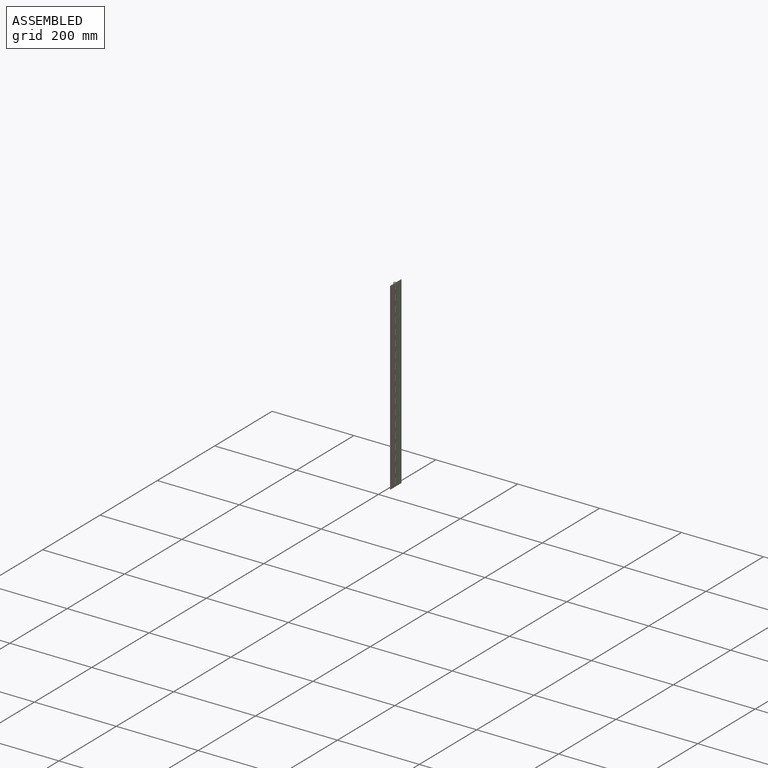
[diagram: assembled view]
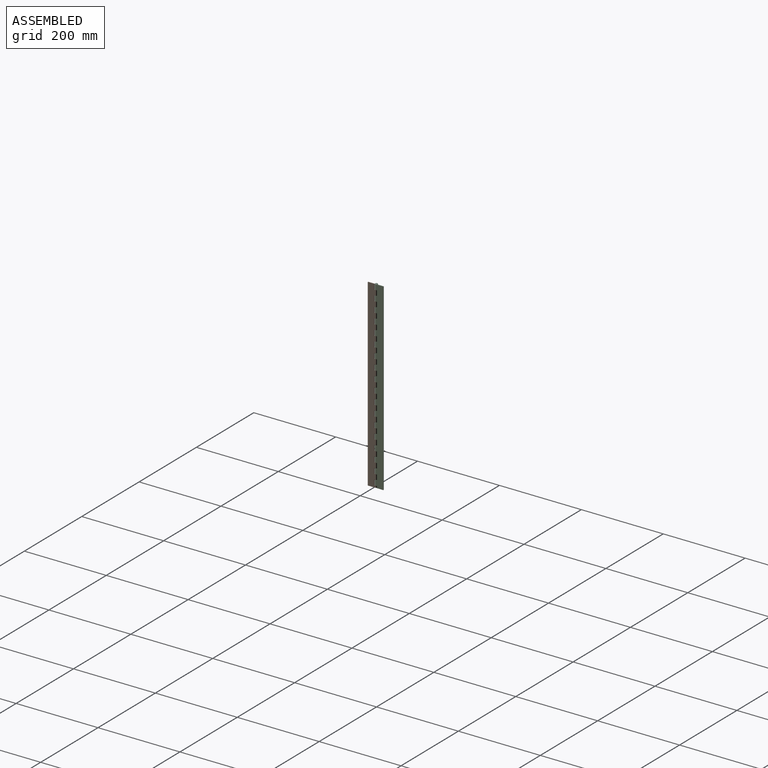
[diagram: assembled view, second angle]
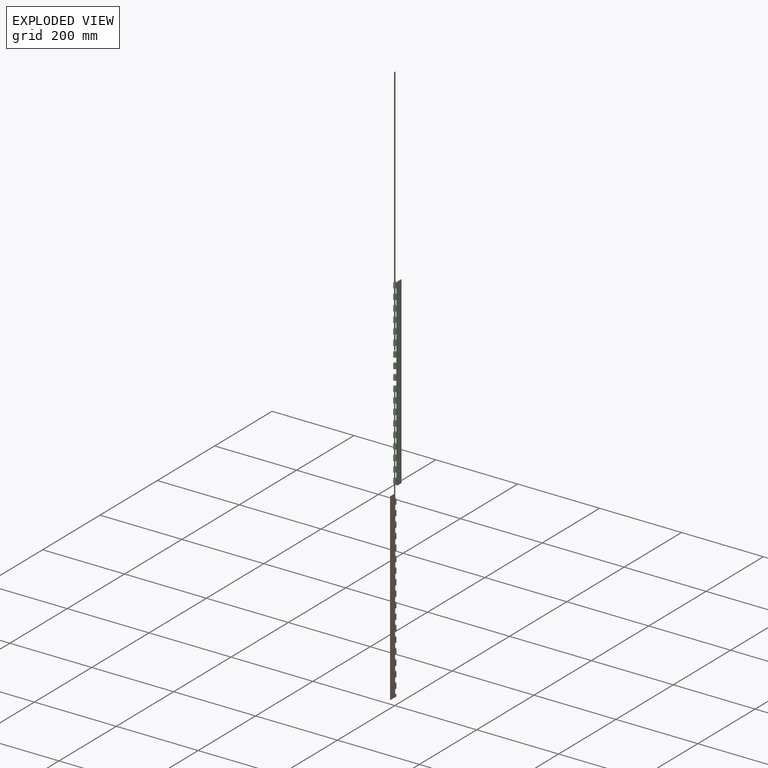
[diagram: exploded view]
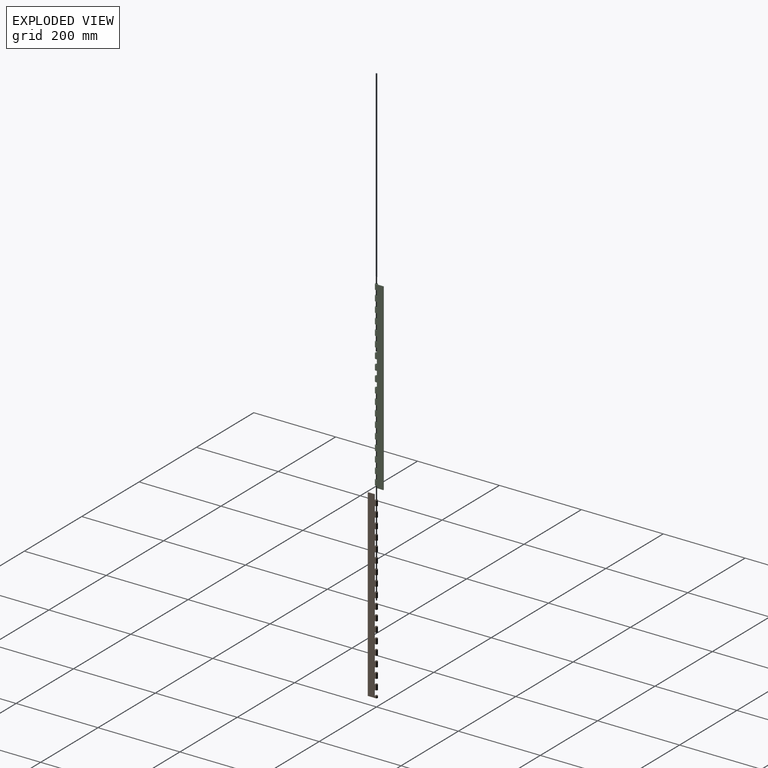
[diagram: exploded view, second angle]
ASSEMBLY  parts=3 mates=2
PART A: 4 faces, bbox 3.2x3.2x449.3 mm
  f0: cylinder r=1.59mm len=448.95mm, axis (0,0,-1), area 4478mm2, adj f2,f3
  f1: plane 2.54x2.54mm, normal (0,0,1), area 5.1mm2, adj f2
  f2: cone r=1.27mm half-angle=45deg, axis (0,0,-1), area 4mm2, adj f0,f1
  f3: plane 3.18x3.18mm, normal (0,0,-1), area 7.9mm2, adj f0
PART B: 112 faces, bbox 22.2x6.2x449.3 mm
  f0: plane 449.26x1.52mm, normal (-1,0,0), area 684.7mm2, adj f1,f2,f24,f111
  f1: plane 449.26x19.05mm, normal (0,-1,0), area 7841.4mm2, adj f0,f3,f6,f7,f8,f9,f10,f11
  f2: plane 449.26x19.05mm, normal (0,1,0), area 7841.4mm2, adj f0,f5,f6,f7,f8,f9,f10,f11
  f3: cylinder r=3.11mm len=6.22mm, axis (0,0,-1), area 76.3mm2, adj f1,f4,f25,f111
  f4: plane 4.76x1.38mm, normal (0.42,-0.91,0), area 7.3mm2, adj f3,f5,f25,f111
  f5: cylinder r=1.59mm len=4.76mm, axis (0,0,-1), area 38.9mm2, adj f2,f4,f25,f111
  f6: plane 12.7x1.52mm, normal (1,0,0), area 19.4mm2, adj f1,f2,f24,f109
  f7: plane 12.7x1.52mm, normal (1,0,0), area 19.4mm2, adj f1,f2,f104,f110
  f8: plane 12.7x1.52mm, normal (1,0,0), area 19.4mm2, adj f1,f2,f99,f105
  f9: plane 12.7x1.52mm, normal (1,0,0), area 19.4mm2, adj f1,f2,f94,f100
  f10: plane 12.7x1.52mm, normal (1,0,0), area 19.4mm2, adj f1,f2,f89,f95
  f11: plane 12.7x1.52mm, normal (1,0,0), area 19.4mm2, adj f1,f2,f84,f90
  f12: plane 12.7x1.52mm, normal (1,0,0), area 19.4mm2, adj f1,f2,f79,f85
  f13: plane 12.7x1.52mm, normal (1,0,0), area 19.4mm2, adj f1,f2,f74,f80
  f14: plane 12.7x1.52mm, normal (1,0,0), area 19.4mm2, adj f1,f2,f69,f75
  f15: plane 12.7x1.52mm, normal (1,0,0), area 19.4mm2, adj f1,f2,f64,f70
  f16: plane 12.7x1.52mm, normal (1,0,0), area 19.4mm2, adj f1,f2,f59,f65
  f17: plane 12.7x1.52mm, normal (1,0,0), area 19.4mm2, adj f1,f2,f54,f60
  f18: plane 12.7x1.52mm, normal (1,0,0), area 19.4mm2, adj f1,f2,f49,f55
  f19: plane 12.7x1.52mm, normal (1,0,0), area 19.4mm2, adj f1,f2,f44,f50
  f20: plane 12.7x1.52mm, normal (1,0,0), area 19.4mm2, adj f1,f2,f39,f45
  f21: plane 12.7x1.52mm, normal (1,0,0), area 19.4mm2, adj f1,f2,f34,f40
  f22: plane 12.7x1.52mm, normal (1,0,0), area 19.4mm2, adj f1,f2,f29,f35
  f23: plane 12.7x1.52mm, normal (1,0,0), area 19.4mm2, adj f1,f2,f25,f30
  f24: plane 15.91x1.52mm, normal (0,0,1), area 24.3mm2, adj f0,f1,f2,f6
  f25: plane 6.25x6.22mm, normal (0,0,1), area 23.2mm2, adj f1,f2,f3,f4,f5,f23
  f26: cylinder r=3.11mm len=12.7mm, axis (0,0,-1), area 203.5mm2, adj f1,f27,f29,f30
  f27: plane 12.7x1.38mm, normal (0.42,-0.91,0), area 19.4mm2, adj f26,f28,f29,f30
  f28: cylinder r=1.59mm len=12.7mm, axis (0,0,-1), area 103.8mm2, adj f2,f27,f29,f30
  f29: plane 6.25x6.22mm, normal (0,0,1), area 23.2mm2, adj f1,f2,f22,f26,f27,f28
  f30: plane 6.25x6.22mm, normal (0,0,-1), area 23.2mm2, adj f1,f2,f23,f26,f27,f28
  f31: cylinder r=3.11mm len=12.7mm, axis (0,0,-1), area 203.5mm2, adj f1,f32,f34,f35
  f32: plane 12.7x1.38mm, normal (0.42,-0.91,0), area 19.4mm2, adj f31,f33,f34,f35
  f33: cylinder r=1.59mm len=12.7mm, axis (0,0,-1), area 103.8mm2, adj f2,f32,f34,f35
  f34: plane 6.25x6.22mm, normal (0,0,1), area 23.2mm2, adj f1,f2,f21,f31,f32,f33
  f35: plane 6.25x6.22mm, normal (0,0,-1), area 23.2mm2, adj f1,f2,f22,f31,f32,f33
  f36: cylinder r=3.11mm len=12.7mm, axis (0,0,-1), area 203.5mm2, adj f1,f37,f39,f40
  f37: plane 12.7x1.38mm, normal (0.42,-0.91,0), area 19.4mm2, adj f36,f38,f39,f40
  f38: cylinder r=1.59mm len=12.7mm, axis (0,0,-1), area 103.8mm2, adj f2,f37,f39,f40
  f39: plane 6.25x6.22mm, normal (0,0,1), area 23.2mm2, adj f1,f2,f20,f36,f37,f38
  f40: plane 6.25x6.22mm, normal (0,0,-1), area 23.2mm2, adj f1,f2,f21,f36,f37,f38
  f41: cylinder r=3.11mm len=12.7mm, axis (0,0,-1), area 203.5mm2, adj f1,f42,f44,f45
  f42: plane 12.7x1.38mm, normal (0.42,-0.91,0), area 19.4mm2, adj f41,f43,f44,f45
  f43: cylinder r=1.59mm len=12.7mm, axis (0,0,-1), area 103.8mm2, adj f2,f42,f44,f45
  f44: plane 6.25x6.22mm, normal (0,0,1), area 23.2mm2, adj f1,f2,f19,f41,f42,f43
  f45: plane 6.25x6.22mm, normal (0,0,-1), area 23.2mm2, adj f1,f2,f20,f41,f42,f43
  f46: cylinder r=3.11mm len=12.7mm, axis (0,0,-1), area 203.5mm2, adj f1,f47,f49,f50
  f47: plane 12.7x1.38mm, normal (0.42,-0.91,0), area 19.4mm2, adj f46,f48,f49,f50
  f48: cylinder r=1.59mm len=12.7mm, axis (0,0,-1), area 103.8mm2, adj f2,f47,f49,f50
  f49: plane 6.25x6.22mm, normal (0,0,1), area 23.2mm2, adj f1,f2,f18,f46,f47,f48
  f50: plane 6.25x6.22mm, normal (0,0,-1), area 23.2mm2, adj f1,f2,f19,f46,f47,f48
  f51: cylinder r=3.11mm len=12.7mm, axis (0,0,-1), area 203.5mm2, adj f1,f52,f54,f55
  f52: plane 12.7x1.38mm, normal (0.42,-0.91,0), area 19.4mm2, adj f51,f53,f54,f55
  f53: cylinder r=1.59mm len=12.7mm, axis (0,0,-1), area 103.8mm2, adj f2,f52,f54,f55
  f54: plane 6.25x6.22mm, normal (0,0,1), area 23.2mm2, adj f1,f2,f17,f51,f52,f53
  f55: plane 6.25x6.22mm, normal (0,0,-1), area 23.2mm2, adj f1,f2,f18,f51,f52,f53
  f56: cylinder r=3.11mm len=12.7mm, axis (0,0,-1), area 203.5mm2, adj f1,f57,f59,f60
  f57: plane 12.7x1.38mm, normal (0.42,-0.91,0), area 19.4mm2, adj f56,f58,f59,f60
  f58: cylinder r=1.59mm len=12.7mm, axis (0,0,-1), area 103.8mm2, adj f2,f57,f59,f60
  f59: plane 6.25x6.22mm, normal (0,0,1), area 23.2mm2, adj f1,f2,f16,f56,f57,f58
  f60: plane 6.25x6.22mm, normal (0,0,-1), area 23.2mm2, adj f1,f2,f17,f56,f57,f58
  f61: cylinder r=3.11mm len=12.7mm, axis (0,0,-1), area 203.5mm2, adj f1,f62,f64,f65
  f62: plane 12.7x1.38mm, normal (0.42,-0.91,0), area 19.4mm2, adj f61,f63,f64,f65
  f63: cylinder r=1.59mm len=12.7mm, axis (0,0,-1), area 103.8mm2, adj f2,f62,f64,f65
  f64: plane 6.25x6.22mm, normal (0,0,1), area 23.2mm2, adj f1,f2,f15,f61,f62,f63
  f65: plane 6.25x6.22mm, normal (0,0,-1), area 23.2mm2, adj f1,f2,f16,f61,f62,f63
  f66: cylinder r=3.11mm len=12.7mm, axis (0,0,-1), area 203.5mm2, adj f1,f67,f69,f70
  f67: plane 12.7x1.38mm, normal (0.42,-0.91,0), area 19.4mm2, adj f66,f68,f69,f70
  f68: cylinder r=1.59mm len=12.7mm, axis (0,0,-1), area 103.8mm2, adj f2,f67,f69,f70
  f69: plane 6.25x6.22mm, normal (0,0,1), area 23.2mm2, adj f1,f2,f14,f66,f67,f68
  f70: plane 6.25x6.22mm, normal (0,0,-1), area 23.2mm2, adj f1,f2,f15,f66,f67,f68
  f71: cylinder r=3.11mm len=12.7mm, axis (0,0,-1), area 203.5mm2, adj f1,f72,f74,f75
  f72: plane 12.7x1.38mm, normal (0.42,-0.91,0), area 19.4mm2, adj f71,f73,f74,f75
  f73: cylinder r=1.59mm len=12.7mm, axis (0,0,-1), area 103.8mm2, adj f2,f72,f74,f75
  f74: plane 6.25x6.22mm, normal (0,0,1), area 23.2mm2, adj f1,f2,f13,f71,f72,f73
  f75: plane 6.25x6.22mm, normal (0,0,-1), area 23.2mm2, adj f1,f2,f14,f71,f72,f73
  f76: cylinder r=3.11mm len=12.7mm, axis (0,0,-1), area 203.5mm2, adj f1,f77,f79,f80
  f77: plane 12.7x1.38mm, normal (0.42,-0.91,0), area 19.4mm2, adj f76,f78,f79,f80
  f78: cylinder r=1.59mm len=12.7mm, axis (0,0,-1), area 103.8mm2, adj f2,f77,f79,f80
  f79: plane 6.25x6.22mm, normal (0,0,1), area 23.2mm2, adj f1,f2,f12,f76,f77,f78
  f80: plane 6.25x6.22mm, normal (0,0,-1), area 23.2mm2, adj f1,f2,f13,f76,f77,f78
  f81: cylinder r=3.11mm len=12.7mm, axis (0,0,-1), area 203.5mm2, adj f1,f82,f84,f85
  f82: plane 12.7x1.38mm, normal (0.42,-0.91,0), area 19.4mm2, adj f81,f83,f84,f85
  f83: cylinder r=1.59mm len=12.7mm, axis (0,0,-1), area 103.8mm2, adj f2,f82,f84,f85
  f84: plane 6.25x6.22mm, normal (0,0,1), area 23.2mm2, adj f1,f2,f11,f81,f82,f83
  f85: plane 6.25x6.22mm, normal (0,0,-1), area 23.2mm2, adj f1,f2,f12,f81,f82,f83
  f86: cylinder r=3.11mm len=12.7mm, axis (0,0,-1), area 203.5mm2, adj f1,f87,f89,f90
  f87: plane 12.7x1.38mm, normal (0.42,-0.91,0), area 19.4mm2, adj f86,f88,f89,f90
  f88: cylinder r=1.59mm len=12.7mm, axis (0,0,-1), area 103.8mm2, adj f2,f87,f89,f90
  f89: plane 6.25x6.22mm, normal (0,0,1), area 23.2mm2, adj f1,f2,f10,f86,f87,f88
  f90: plane 6.25x6.22mm, normal (0,0,-1), area 23.2mm2, adj f1,f2,f11,f86,f87,f88
  f91: cylinder r=3.11mm len=12.7mm, axis (0,0,-1), area 203.5mm2, adj f1,f92,f94,f95
  f92: plane 12.7x1.38mm, normal (0.42,-0.91,0), area 19.4mm2, adj f91,f93,f94,f95
  f93: cylinder r=1.59mm len=12.7mm, axis (0,0,-1), area 103.8mm2, adj f2,f92,f94,f95
  f94: plane 6.25x6.22mm, normal (0,0,1), area 23.2mm2, adj f1,f2,f9,f91,f92,f93
  f95: plane 6.25x6.22mm, normal (0,0,-1), area 23.2mm2, adj f1,f2,f10,f91,f92,f93
  f96: cylinder r=3.11mm len=12.7mm, axis (0,0,-1), area 203.5mm2, adj f1,f97,f99,f100
  f97: plane 12.7x1.38mm, normal (0.42,-0.91,0), area 19.4mm2, adj f96,f98,f99,f100
  f98: cylinder r=1.59mm len=12.7mm, axis (0,0,-1), area 103.8mm2, adj f2,f97,f99,f100
  f99: plane 6.25x6.22mm, normal (0,0,1), area 23.2mm2, adj f1,f2,f8,f96,f97,f98
  f100: plane 6.25x6.22mm, normal (0,0,-1), area 23.2mm2, adj f1,f2,f9,f96,f97,f98
  f101: cylinder r=3.11mm len=12.7mm, axis (0,0,-1), area 203.5mm2, adj f1,f102,f104,f105
  f102: plane 12.7x1.38mm, normal (0.42,-0.91,0), area 19.4mm2, adj f101,f103,f104,f105
  f103: cylinder r=1.59mm len=12.7mm, axis (0,0,-1), area 103.8mm2, adj f2,f102,f104,f105
  f104: plane 6.25x6.22mm, normal (0,0,1), area 23.2mm2, adj f1,f2,f7,f101,f102,f103
  f105: plane 6.25x6.22mm, normal (0,0,-1), area 23.2mm2, adj f1,f2,f8,f101,f102,f103
  f106: cylinder r=3.11mm len=12.7mm, axis (0,0,-1), area 203.5mm2, adj f1,f107,f109,f110
  f107: plane 12.7x1.38mm, normal (0.42,-0.91,0), area 19.4mm2, adj f106,f108,f109,f110
  f108: cylinder r=1.59mm len=12.7mm, axis (0,0,-1), area 103.8mm2, adj f2,f107,f109,f110
  f109: plane 6.25x6.22mm, normal (0,0,1), area 23.2mm2, adj f1,f2,f6,f106,f107,f108
  f110: plane 6.25x6.22mm, normal (0,0,-1), area 23.2mm2, adj f1,f2,f7,f106,f107,f108
  f111: plane 22.16x6.22mm, normal (0,0,-1), area 47.5mm2, adj f0,f1,f2,f3,f4,f5
PART C: 112 faces, bbox 22.2x6.2x449.3 mm
  f0: plane 449.26x1.52mm, normal (1,0,0), area 684.7mm2, adj f1,f2,f58,f111
  f1: plane 449.26x19.05mm, normal (0,1,0), area 7871.9mm2, adj f0,f3,f5,f8,f11,f14,f17,f20
  f2: plane 449.26x19.05mm, normal (0,-1,0), area 7871.9mm2, adj f0,f3,f4,f7,f10,f13,f16,f19
  f3: plane 4.76x1.52mm, normal (-1,0,0), area 7.3mm2, adj f1,f2,f59,f111
  f4: cylinder r=3.11mm len=12.7mm, axis (0,0,-1), area 203.5mm2, adj f2,f57,f58,f110
  f5: cylinder r=1.59mm len=12.7mm, axis (0,0,-1), area 103.8mm2, adj f1,f6,f107,f108
  f6: plane 12.7x1.38mm, normal (-0.42,-0.91,0), area 19.4mm2, adj f5,f7,f107,f108
  f7: cylinder r=3.11mm len=12.7mm, axis (0,0,-1), area 203.5mm2, adj f2,f6,f107,f108
  f8: cylinder r=1.59mm len=12.7mm, axis (0,0,-1), area 103.8mm2, adj f1,f9,f104,f105
  f9: plane 12.7x1.38mm, normal (-0.42,-0.91,0), area 19.4mm2, adj f8,f10,f104,f105
  f10: cylinder r=3.11mm len=12.7mm, axis (0,0,-1), area 203.5mm2, adj f2,f9,f104,f105
  f11: cylinder r=1.59mm len=12.7mm, axis (0,0,-1), area 103.8mm2, adj f1,f12,f101,f102
  f12: plane 12.7x1.38mm, normal (-0.42,-0.91,0), area 19.4mm2, adj f11,f13,f101,f102
  f13: cylinder r=3.11mm len=12.7mm, axis (0,0,-1), area 203.5mm2, adj f2,f12,f101,f102
  f14: cylinder r=1.59mm len=12.7mm, axis (0,0,-1), area 103.8mm2, adj f1,f15,f98,f99
  f15: plane 12.7x1.38mm, normal (-0.42,-0.91,0), area 19.4mm2, adj f14,f16,f98,f99
  f16: cylinder r=3.11mm len=12.7mm, axis (0,0,-1), area 203.5mm2, adj f2,f15,f98,f99
  f17: cylinder r=1.59mm len=12.7mm, axis (0,0,-1), area 103.8mm2, adj f1,f18,f95,f96
  f18: plane 12.7x1.38mm, normal (-0.42,-0.91,0), area 19.4mm2, adj f17,f19,f95,f96
  f19: cylinder r=3.11mm len=12.7mm, axis (0,0,-1), area 203.5mm2, adj f2,f18,f95,f96
  f20: cylinder r=1.59mm len=12.7mm, axis (0,0,-1), area 103.8mm2, adj f1,f21,f92,f93
  f21: plane 12.7x1.38mm, normal (-0.42,-0.91,0), area 19.4mm2, adj f20,f22,f92,f93
  f22: cylinder r=3.11mm len=12.7mm, axis (0,0,-1), area 203.5mm2, adj f2,f21,f92,f93
  f23: cylinder r=1.59mm len=12.7mm, axis (0,0,-1), area 103.8mm2, adj f1,f24,f89,f90
  f24: plane 12.7x1.38mm, normal (-0.42,-0.91,0), area 19.4mm2, adj f23,f25,f89,f90
  f25: cylinder r=3.11mm len=12.7mm, axis (0,0,-1), area 203.5mm2, adj f2,f24,f89,f90
  f26: cylinder r=1.59mm len=12.7mm, axis (0,0,-1), area 103.8mm2, adj f1,f27,f86,f87
  f27: plane 12.7x1.38mm, normal (-0.42,-0.91,0), area 19.4mm2, adj f26,f28,f86,f87
  f28: cylinder r=3.11mm len=12.7mm, axis (0,0,-1), area 203.5mm2, adj f2,f27,f86,f87
  f29: cylinder r=1.59mm len=12.7mm, axis (0,0,-1), area 103.8mm2, adj f1,f30,f83,f84
  f30: plane 12.7x1.38mm, normal (-0.42,-0.91,0), area 19.4mm2, adj f29,f31,f83,f84
  f31: cylinder r=3.11mm len=12.7mm, axis (0,0,-1), area 203.5mm2, adj f2,f30,f83,f84
  f32: cylinder r=1.59mm len=12.7mm, axis (0,0,-1), area 103.8mm2, adj f1,f33,f80,f81
  f33: plane 12.7x1.38mm, normal (-0.42,-0.91,0), area 19.4mm2, adj f32,f34,f80,f81
  f34: cylinder r=3.11mm len=12.7mm, axis (0,0,-1), area 203.5mm2, adj f2,f33,f80,f81
  f35: cylinder r=1.59mm len=12.7mm, axis (0,0,-1), area 103.8mm2, adj f1,f36,f77,f78
  f36: plane 12.7x1.38mm, normal (-0.42,-0.91,0), area 19.4mm2, adj f35,f37,f77,f78
  f37: cylinder r=3.11mm len=12.7mm, axis (0,0,-1), area 203.5mm2, adj f2,f36,f77,f78
  f38: cylinder r=1.59mm len=12.7mm, axis (0,0,-1), area 103.8mm2, adj f1,f39,f74,f75
  f39: plane 12.7x1.38mm, normal (-0.42,-0.91,0), area 19.4mm2, adj f38,f40,f74,f75
  f40: cylinder r=3.11mm len=12.7mm, axis (0,0,-1), area 203.5mm2, adj f2,f39,f74,f75
  f41: cylinder r=1.59mm len=12.7mm, axis (0,0,-1), area 103.8mm2, adj f1,f42,f71,f72
  f42: plane 12.7x1.38mm, normal (-0.42,-0.91,0), area 19.4mm2, adj f41,f43,f71,f72
  f43: cylinder r=3.11mm len=12.7mm, axis (0,0,-1), area 203.5mm2, adj f2,f42,f71,f72
  f44: cylinder r=1.59mm len=12.7mm, axis (0,0,-1), area 103.8mm2, adj f1,f45,f68,f69
  f45: plane 12.7x1.38mm, normal (-0.42,-0.91,0), area 19.4mm2, adj f44,f46,f68,f69
  f46: cylinder r=3.11mm len=12.7mm, axis (0,0,-1), area 203.5mm2, adj f2,f45,f68,f69
  f47: cylinder r=1.59mm len=12.7mm, axis (0,0,-1), area 103.8mm2, adj f1,f48,f65,f66
  f48: plane 12.7x1.38mm, normal (-0.42,-0.91,0), area 19.4mm2, adj f47,f49,f65,f66
  f49: cylinder r=3.11mm len=12.7mm, axis (0,0,-1), area 203.5mm2, adj f2,f48,f65,f66
  f50: cylinder r=1.59mm len=12.7mm, axis (0,0,-1), area 103.8mm2, adj f1,f51,f62,f63
  f51: plane 12.7x1.38mm, normal (-0.42,-0.91,0), area 19.4mm2, adj f50,f52,f62,f63
  f52: cylinder r=3.11mm len=12.7mm, axis (0,0,-1), area 203.5mm2, adj f2,f51,f62,f63
  f53: cylinder r=1.59mm len=12.7mm, axis (0,0,-1), area 103.8mm2, adj f1,f54,f59,f60
  f54: plane 12.7x1.38mm, normal (-0.42,-0.91,0), area 19.4mm2, adj f53,f55,f59,f60
  f55: cylinder r=3.11mm len=12.7mm, axis (0,0,-1), area 203.5mm2, adj f2,f54,f59,f60
  f56: cylinder r=1.59mm len=12.7mm, axis (0,0,-1), area 103.8mm2, adj f1,f57,f58,f110
  f57: plane 12.7x1.38mm, normal (-0.42,-0.91,0), area 19.4mm2, adj f4,f56,f58,f110
  f58: plane 22.16x6.22mm, normal (0,0,1), area 47.5mm2, adj f0,f1,f2,f4,f56,f57
  f59: plane 6.22x6.22mm, normal (0,0,-1), area 23.2mm2, adj f1,f2,f3,f53,f54,f55
  f60: plane 6.22x6.22mm, normal (0,0,1), area 23.2mm2, adj f1,f2,f53,f54,f55,f61
  f61: plane 12.7x1.52mm, normal (-1,0,0), area 19.4mm2, adj f1,f2,f60,f62
  f62: plane 6.22x6.22mm, normal (0,0,-1), area 23.2mm2, adj f1,f2,f50,f51,f52,f61
  f63: plane 6.22x6.22mm, normal (0,0,1), area 23.2mm2, adj f1,f2,f50,f51,f52,f64
  f64: plane 12.7x1.52mm, normal (-1,0,0), area 19.4mm2, adj f1,f2,f63,f65
  f65: plane 6.22x6.22mm, normal (0,0,-1), area 23.2mm2, adj f1,f2,f47,f48,f49,f64
  f66: plane 6.22x6.22mm, normal (0,0,1), area 23.2mm2, adj f1,f2,f47,f48,f49,f67
  f67: plane 12.7x1.52mm, normal (-1,0,0), area 19.4mm2, adj f1,f2,f66,f68
  f68: plane 6.22x6.22mm, normal (0,0,-1), area 23.2mm2, adj f1,f2,f44,f45,f46,f67
  f69: plane 6.22x6.22mm, normal (0,0,1), area 23.2mm2, adj f1,f2,f44,f45,f46,f70
  f70: plane 12.7x1.52mm, normal (-1,0,0), area 19.4mm2, adj f1,f2,f69,f71
  f71: plane 6.22x6.22mm, normal (0,0,-1), area 23.2mm2, adj f1,f2,f41,f42,f43,f70
  f72: plane 6.22x6.22mm, normal (0,0,1), area 23.2mm2, adj f1,f2,f41,f42,f43,f73
  f73: plane 12.7x1.52mm, normal (-1,0,0), area 19.4mm2, adj f1,f2,f72,f74
  f74: plane 6.22x6.22mm, normal (0,0,-1), area 23.2mm2, adj f1,f2,f38,f39,f40,f73
  f75: plane 6.22x6.22mm, normal (0,0,1), area 23.2mm2, adj f1,f2,f38,f39,f40,f76
  f76: plane 12.7x1.52mm, normal (-1,0,0), area 19.4mm2, adj f1,f2,f75,f77
  f77: plane 6.22x6.22mm, normal (0,0,-1), area 23.2mm2, adj f1,f2,f35,f36,f37,f76
  f78: plane 6.22x6.22mm, normal (0,0,1), area 23.2mm2, adj f1,f2,f35,f36,f37,f79
  f79: plane 12.7x1.52mm, normal (-1,0,0), area 19.4mm2, adj f1,f2,f78,f80
  f80: plane 6.22x6.22mm, normal (0,0,-1), area 23.2mm2, adj f1,f2,f32,f33,f34,f79
  f81: plane 6.22x6.22mm, normal (0,0,1), area 23.2mm2, adj f1,f2,f32,f33,f34,f82
  f82: plane 12.7x1.52mm, normal (-1,0,0), area 19.4mm2, adj f1,f2,f81,f83
  f83: plane 6.22x6.22mm, normal (0,0,-1), area 23.2mm2, adj f1,f2,f29,f30,f31,f82
  f84: plane 6.22x6.22mm, normal (0,0,1), area 23.2mm2, adj f1,f2,f29,f30,f31,f85
  f85: plane 12.7x1.52mm, normal (-1,0,0), area 19.4mm2, adj f1,f2,f84,f86
  f86: plane 6.22x6.22mm, normal (0,0,-1), area 23.2mm2, adj f1,f2,f26,f27,f28,f85
  f87: plane 6.22x6.22mm, normal (0,0,1), area 23.2mm2, adj f1,f2,f26,f27,f28,f88
  f88: plane 12.7x1.52mm, normal (-1,0,0), area 19.4mm2, adj f1,f2,f87,f89
  f89: plane 6.22x6.22mm, normal (0,0,-1), area 23.2mm2, adj f1,f2,f23,f24,f25,f88
  f90: plane 6.22x6.22mm, normal (0,0,1), area 23.2mm2, adj f1,f2,f23,f24,f25,f91
  f91: plane 12.7x1.52mm, normal (-1,0,0), area 19.4mm2, adj f1,f2,f90,f92
  f92: plane 6.22x6.22mm, normal (0,0,-1), area 23.2mm2, adj f1,f2,f20,f21,f22,f91
  f93: plane 6.22x6.22mm, normal (0,0,1), area 23.2mm2, adj f1,f2,f20,f21,f22,f94
  f94: plane 12.7x1.52mm, normal (-1,0,0), area 19.4mm2, adj f1,f2,f93,f95
  f95: plane 6.22x6.22mm, normal (0,0,-1), area 23.2mm2, adj f1,f2,f17,f18,f19,f94
  f96: plane 6.22x6.22mm, normal (0,0,1), area 23.2mm2, adj f1,f2,f17,f18,f19,f97
  f97: plane 12.7x1.52mm, normal (-1,0,0), area 19.4mm2, adj f1,f2,f96,f98
  f98: plane 6.22x6.22mm, normal (0,0,-1), area 23.2mm2, adj f1,f2,f14,f15,f16,f97
  f99: plane 6.22x6.22mm, normal (0,0,1), area 23.2mm2, adj f1,f2,f14,f15,f16,f100
  f100: plane 12.7x1.52mm, normal (-1,0,0), area 19.4mm2, adj f1,f2,f99,f101
  f101: plane 6.22x6.22mm, normal (0,0,-1), area 23.2mm2, adj f1,f2,f11,f12,f13,f100
  f102: plane 6.22x6.22mm, normal (0,0,1), area 23.2mm2, adj f1,f2,f11,f12,f13,f103
  f103: plane 12.7x1.52mm, normal (-1,0,0), area 19.4mm2, adj f1,f2,f102,f104
  f104: plane 6.22x6.22mm, normal (0,0,-1), area 23.2mm2, adj f1,f2,f8,f9,f10,f103
  f105: plane 6.22x6.22mm, normal (0,0,1), area 23.2mm2, adj f1,f2,f8,f9,f10,f106
  f106: plane 12.7x1.52mm, normal (-1,0,0), area 19.4mm2, adj f1,f2,f105,f107
  f107: plane 6.22x6.22mm, normal (0,0,-1), area 23.2mm2, adj f1,f2,f5,f6,f7,f106
  f108: plane 6.22x6.22mm, normal (0,0,1), area 23.2mm2, adj f1,f2,f5,f6,f7,f109
  f109: plane 12.7x1.52mm, normal (-1,0,0), area 19.4mm2, adj f1,f2,f108,f110
  f110: plane 6.22x6.22mm, normal (0,0,-1), area 23.2mm2, adj f1,f2,f4,f56,f57,f109
  f111: plane 15.94x1.52mm, normal (0,0,-1), area 24.3mm2, adj f0,f1,f2,f3
PLACE A t=(0,0,-304.8)mm
PLACE B rot(axis=(0,0,1),90deg) t=(0,0,-304.8)mm
PLACE C rot(axis=(0,0,1),90deg) t=(0,0,-304.8)mm
MATE fastened A.f0 <-> C.f4  axis (0,0,1) through (0,0,0)mm
MATE revolute B.f3 <-> C.f4  axis (0,0,1) through (0,0,-12.7)mm
